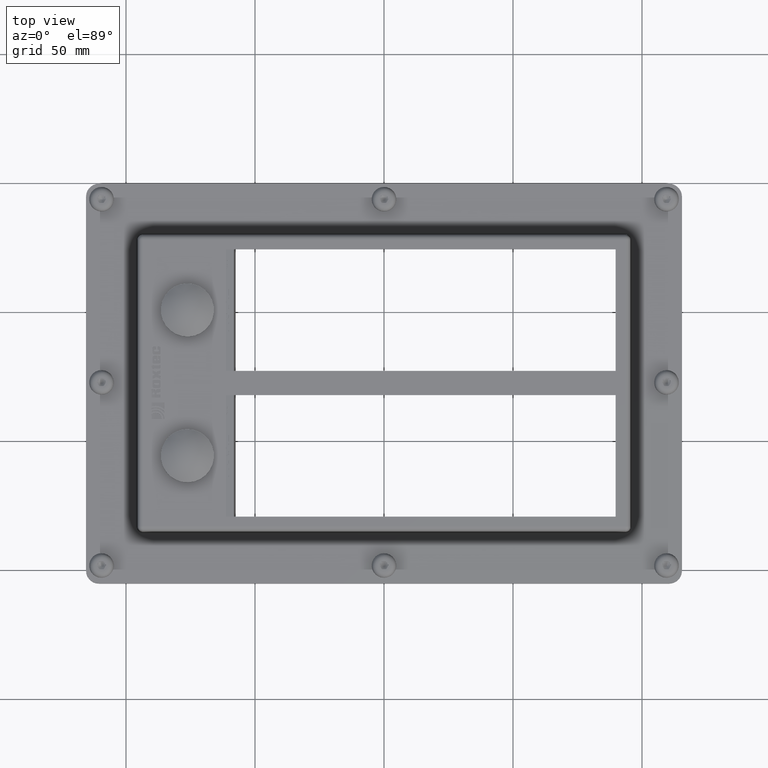
[diagram: clean part render]
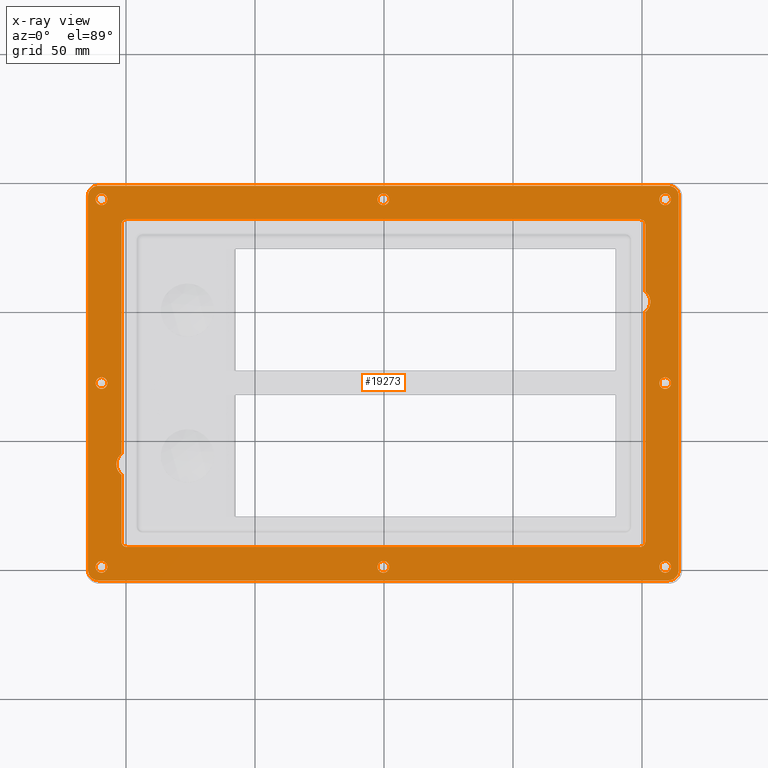
[diagram: x-ray — body ghosted, one internal face saturated and labeled with its STEP entity id]
A machine part, top view, then the same camera in x-ray: the body is ghosted and one INTERNAL B-rep face — a face not visible from any outside direction — is saturated and labeled: STEP entity #19273.
In plain terms, the highlighted planar face has unit normal (0, 0, -1).
Its self-contained STEP definition (entity closure, byte-faithful):
#18415=CARTESIAN_POINT('',(-101.75000000000028,-55.499999999999822,14.500000000000002));
#18416=VERTEX_POINT('',#18415);
#18423=CARTESIAN_POINT('',(-101.75000000000027,-63.499999999999815,14.500000000000002));
#18424=VERTEX_POINT('',#18423);
#18425=CARTESIAN_POINT('',(-98.750000000000284,-59.499999999999815,14.500000000000002));
#18426=DIRECTION('',(0.0,0.0,-1.0));
#18427=DIRECTION('',(-0.600000000000001,0.799999999999999,0.0));
#18428=AXIS2_PLACEMENT_3D('',#18425,#18426,#18427);
#18429=CIRCLE('',#18428,5.000000000000001);
#18430=EDGE_CURVE('',#18424,#18416,#18429,.T.);
#18457=CARTESIAN_POINT('',(101.24999999999972,-0.499999999999812,14.500000000000002));
#18458=VERTEX_POINT('',#18457);
#18465=CARTESIAN_POINT('',(101.24999999999972,7.50000000000016,14.500000000000002));
#18466=VERTEX_POINT('',#18465);
#18467=CARTESIAN_POINT('',(98.249999999999716,3.500000000000174,14.500000000000002));
#18468=DIRECTION('',(0.0,0.0,-1.0));
#18469=DIRECTION('',(-0.600000000000002,0.799999999999998,0.0));
#18470=AXIS2_PLACEMENT_3D('',#18467,#18468,#18469);
#18471=CIRCLE('',#18470,5.0);
#18472=EDGE_CURVE('',#18466,#18458,#18471,.T.);
#18489=CARTESIAN_POINT('',(-101.75000000000028,-89.499999999999815,14.500000000000002));
#18490=VERTEX_POINT('',#18489);
#18491=CARTESIAN_POINT('',(-101.75000000000027,-89.499999999999829,14.500000000000002));
#18492=DIRECTION('',(0.0,1.0,0.0));
#18493=VECTOR('',#18492,26.000000000000007);
#18494=LINE('',#18491,#18493);
#18495=EDGE_CURVE('',#18490,#18424,#18494,.T.);
#18528=CARTESIAN_POINT('',(-101.75000000000027,33.500000000000171,14.500000000000002));
#18529=VERTEX_POINT('',#18528);
#18536=CARTESIAN_POINT('',(-101.75000000000027,-55.499999999999822,14.500000000000002));
#18537=DIRECTION('',(0.0,1.0,0.0));
#18538=VECTOR('',#18537,89.0);
#18539=LINE('',#18536,#18538);
#18540=EDGE_CURVE('',#18416,#18529,#18539,.T.);
#18559=CARTESIAN_POINT('',(101.24999999999972,-89.499999999999773,14.500000000000002));
#18560=VERTEX_POINT('',#18559);
#18567=CARTESIAN_POINT('',(101.2499999999997,-0.499999999999808,14.500000000000002));
#18568=DIRECTION('',(0.0,-1.0,0.0));
#18569=VECTOR('',#18568,88.999999999999972);
#18570=LINE('',#18567,#18569);
#18571=EDGE_CURVE('',#18458,#18560,#18570,.T.);
#18811=CARTESIAN_POINT('',(111.24999999999974,-27.999999999999822,14.500000000000002));
#18812=VERTEX_POINT('',#18811);
#18813=CARTESIAN_POINT('',(108.99999999999974,-27.999999999999822,14.500000000000002));
#18814=DIRECTION('',(0.0,0.0,-1.0));
#18815=DIRECTION('',(1.0,0.0,0.0));
#18816=AXIS2_PLACEMENT_3D('',#18813,#18814,#18815);
#18817=CIRCLE('',#18816,2.25);
#18818=EDGE_CURVE('',#18812,#18812,#18817,.T.);
#18831=CARTESIAN_POINT('',(-107.25000000000026,-27.999999999999812,14.500000000000002));
#18832=VERTEX_POINT('',#18831);
#18833=CARTESIAN_POINT('',(-109.50000000000028,-27.999999999999812,14.500000000000002));
#18834=DIRECTION('',(0.0,0.0,-1.0));
#18835=DIRECTION('',(1.0,0.0,0.0));
#18836=AXIS2_PLACEMENT_3D('',#18833,#18834,#18835);
#18837=CIRCLE('',#18836,2.25);
#18838=EDGE_CURVE('',#18832,#18832,#18837,.T.);
#18851=CARTESIAN_POINT('',(1.999999999999744,43.250000000000185,14.500000000000002));
#18852=VERTEX_POINT('',#18851);
#18853=CARTESIAN_POINT('',(-0.250000000000252,43.250000000000185,14.500000000000002));
#18854=DIRECTION('',(0.0,0.0,-1.0));
#18855=DIRECTION('',(1.0,0.0,0.0));
#18856=AXIS2_PLACEMENT_3D('',#18853,#18854,#18855);
#18857=CIRCLE('',#18856,2.25);
#18858=EDGE_CURVE('',#18852,#18852,#18857,.T.);
#18871=CARTESIAN_POINT('',(1.999999999999691,-99.249999999999815,14.500000000000002));
#18872=VERTEX_POINT('',#18871);
#18873=CARTESIAN_POINT('',(-0.250000000000306,-99.249999999999815,14.500000000000002));
#18874=DIRECTION('',(0.0,0.0,-1.0));
#18875=DIRECTION('',(1.0,0.0,0.0));
#18876=AXIS2_PLACEMENT_3D('',#18873,#18874,#18875);
#18877=CIRCLE('',#18876,2.25);
#18878=EDGE_CURVE('',#18872,#18872,#18877,.T.);
#18891=CARTESIAN_POINT('',(-107.2500000000003,-99.249999999999815,14.500000000000002));
#18892=VERTEX_POINT('',#18891);
#18893=CARTESIAN_POINT('',(-109.5000000000003,-99.249999999999815,14.500000000000002));
#18894=DIRECTION('',(0.0,0.0,-1.0));
#18895=DIRECTION('',(1.0,0.0,0.0));
#18896=AXIS2_PLACEMENT_3D('',#18893,#18894,#18895);
#18897=CIRCLE('',#18896,2.25);
#18898=EDGE_CURVE('',#18892,#18892,#18897,.T.);
#18911=CARTESIAN_POINT('',(-107.25000000000024,43.250000000000206,14.500000000000002));
#18912=VERTEX_POINT('',#18911);
#18913=CARTESIAN_POINT('',(-109.50000000000024,43.250000000000206,14.500000000000002));
#18914=DIRECTION('',(0.0,0.0,-1.0));
#18915=DIRECTION('',(1.0,0.0,0.0));
#18916=AXIS2_PLACEMENT_3D('',#18913,#18914,#18915);
#18917=CIRCLE('',#18916,2.25);
#18918=EDGE_CURVE('',#18912,#18912,#18917,.T.);
#18931=CARTESIAN_POINT('',(111.24999999999972,-99.249999999999815,14.500000000000002));
#18932=VERTEX_POINT('',#18931);
#18933=CARTESIAN_POINT('',(108.9999999999997,-99.249999999999815,14.500000000000002));
#18934=DIRECTION('',(0.0,0.0,-1.0));
#18935=DIRECTION('',(1.0,0.0,0.0));
#18936=AXIS2_PLACEMENT_3D('',#18933,#18934,#18935);
#18937=CIRCLE('',#18936,2.25);
#18938=EDGE_CURVE('',#18932,#18932,#18937,.T.);
#18951=CARTESIAN_POINT('',(111.24999999999974,43.250000000000185,14.500000000000002));
#18952=VERTEX_POINT('',#18951);
#18953=CARTESIAN_POINT('',(108.99999999999974,43.250000000000185,14.500000000000002));
#18954=DIRECTION('',(0.0,0.0,-1.0));
#18955=DIRECTION('',(1.0,0.0,0.0));
#18956=AXIS2_PLACEMENT_3D('',#18953,#18954,#18955);
#18957=CIRCLE('',#18956,2.25);
#18958=EDGE_CURVE('',#18952,#18952,#18957,.T.);
#18968=CARTESIAN_POINT('',(-99.750000000000284,-91.499999999999801,14.500000000000002));
#18969=VERTEX_POINT('',#18968);
#18970=CARTESIAN_POINT('',(-99.750000000000284,-89.499999999999801,14.500000000000002));
#18971=DIRECTION('',(0.0,0.0,1.0));
#18972=DIRECTION('',(-0.707106781186547,-0.707106781186548,0.0));
#18973=AXIS2_PLACEMENT_3D('',#18970,#18971,#18972);
#18974=CIRCLE('',#18973,2.0);
#18975=EDGE_CURVE('',#18490,#18969,#18974,.T.);
#18994=CARTESIAN_POINT('',(99.249999999999716,-91.499999999999773,14.500000000000002));
#18995=VERTEX_POINT('',#18994);
#18996=CARTESIAN_POINT('',(99.24999999999973,-91.499999999999787,14.500000000000002));
#18997=DIRECTION('',(-1.0,0.0,0.0));
#18998=VECTOR('',#18997,199.0);
#18999=LINE('',#18996,#18998);
#19000=EDGE_CURVE('',#18995,#18969,#18999,.T.);
#19017=CARTESIAN_POINT('',(99.249999999999716,-89.499999999999773,14.500000000000002));
#19018=DIRECTION('',(0.0,0.0,1.0));
#19019=DIRECTION('',(0.70710678118654,-0.707106781186555,0.0));
#19020=AXIS2_PLACEMENT_3D('',#19017,#19018,#19019);
#19021=CIRCLE('',#19020,2.0);
#19022=EDGE_CURVE('',#18995,#18560,#19021,.T.);
#19036=CARTESIAN_POINT('',(101.24999999999972,33.500000000000171,14.500000000000002));
#19037=VERTEX_POINT('',#19036);
#19038=CARTESIAN_POINT('',(101.2499999999997,33.500000000000171,14.500000000000002));
#19039=DIRECTION('',(0.0,-1.0,0.0));
#19040=VECTOR('',#19039,26.0);
#19041=LINE('',#19038,#19040);
#19042=EDGE_CURVE('',#19037,#18466,#19041,.T.);
#19059=CARTESIAN_POINT('',(99.249999999999687,35.500000000000185,14.500000000000002));
#19060=VERTEX_POINT('',#19059);
#19061=CARTESIAN_POINT('',(99.249999999999687,33.500000000000171,14.500000000000002));
#19062=DIRECTION('',(0.0,0.0,1.0));
#19063=DIRECTION('',(0.707106781186554,0.707106781186541,0.0));
#19064=AXIS2_PLACEMENT_3D('',#19061,#19062,#19063);
#19065=CIRCLE('',#19064,2.0);
#19066=EDGE_CURVE('',#19037,#19060,#19065,.T.);
#19085=CARTESIAN_POINT('',(-99.750000000000284,35.500000000000185,14.500000000000002));
#19086=VERTEX_POINT('',#19085);
#19087=CARTESIAN_POINT('',(-99.750000000000284,35.500000000000178,14.500000000000002));
#19088=DIRECTION('',(1.0,0.0,0.0));
#19089=VECTOR('',#19088,198.99999999999997);
#19090=LINE('',#19087,#19089);
#19091=EDGE_CURVE('',#19086,#19060,#19090,.T.);
#19108=CARTESIAN_POINT('',(-99.750000000000284,33.500000000000171,14.500000000000002));
#19109=DIRECTION('',(0.0,0.0,1.0));
#19110=DIRECTION('',(-0.707106781186548,0.707106781186547,0.0));
#19111=AXIS2_PLACEMENT_3D('',#19108,#19109,#19110);
#19112=CIRCLE('',#19111,2.0);
#19113=EDGE_CURVE('',#19086,#18529,#19112,.T.);
#19127=CARTESIAN_POINT('',(-110.7500000000003,-104.49999999999982,14.500000000000002));
#19128=VERTEX_POINT('',#19127);
#19135=CARTESIAN_POINT('',(-114.7500000000003,-100.49999999999982,14.500000000000002));
#19136=VERTEX_POINT('',#19135);
#19137=CARTESIAN_POINT('',(-110.7500000000003,-100.49999999999982,14.500000000000002));
#19138=DIRECTION('',(0.0,0.0,-1.0));
#19139=DIRECTION('',(-0.707106781186547,-0.707106781186548,0.0));
#19140=AXIS2_PLACEMENT_3D('',#19137,#19138,#19139);
#19141=CIRCLE('',#19140,4.0);
#19142=EDGE_CURVE('',#19128,#19136,#19141,.T.);
#19159=CARTESIAN_POINT('',(-114.75000000000026,44.500000000000206,14.500000000000002));
#19160=VERTEX_POINT('',#19159);
#19161=CARTESIAN_POINT('',(-114.75000000000026,44.500000000000213,14.500000000000002));
#19162=DIRECTION('',(0.0,-1.0,0.0));
#19163=VECTOR('',#19162,145.00000000000003);
#19164=LINE('',#19161,#19163);
#19165=EDGE_CURVE('',#19160,#19136,#19164,.T.);
#19177=CARTESIAN_POINT('',(-0.250000000000288,-27.999999999999794,14.500000000000002));
#19178=DIRECTION('',(0.0,0.0,-1.0));
#19179=DIRECTION('',(0.0,1.0,0.0));
#19180=AXIS2_PLACEMENT_3D('',#19177,#19178,#19179);
#19181=PLANE('',#19180);
#19182=ORIENTED_EDGE('',*,*,#19142,.F.);
#19183=CARTESIAN_POINT('',(110.24999999999974,-104.49999999999982,14.500000000000002));
#19184=VERTEX_POINT('',#19183);
#19185=CARTESIAN_POINT('',(-110.7500000000003,-104.49999999999982,14.500000000000002));
#19186=DIRECTION('',(1.0,0.0,0.0));
#19187=VECTOR('',#19186,221.00000000000003);
#19188=LINE('',#19185,#19187);
#19189=EDGE_CURVE('',#19128,#19184,#19188,.T.);
#19190=ORIENTED_EDGE('',*,*,#19189,.T.);
#19191=CARTESIAN_POINT('',(114.24999999999972,-100.49999999999982,14.500000000000002));
#19192=VERTEX_POINT('',#19191);
#19193=CARTESIAN_POINT('',(110.24999999999974,-100.49999999999982,14.500000000000002));
#19194=DIRECTION('',(0.0,0.0,-1.0));
#19195=DIRECTION('',(0.707106781186546,-0.707106781186549,0.0));
#19196=AXIS2_PLACEMENT_3D('',#19193,#19194,#19195);
#19197=CIRCLE('',#19196,4.0);
#19198=EDGE_CURVE('',#19192,#19184,#19197,.T.);
#19199=ORIENTED_EDGE('',*,*,#19198,.F.);
#19200=CARTESIAN_POINT('',(114.24999999999972,44.500000000000185,14.500000000000002));
#19201=VERTEX_POINT('',#19200);
#19202=CARTESIAN_POINT('',(114.24999999999972,-100.49999999999982,14.500000000000002));
#19203=DIRECTION('',(0.0,1.0,0.0));
#19204=VECTOR('',#19203,145.0);
#19205=LINE('',#19202,#19204);
#19206=EDGE_CURVE('',#19192,#19201,#19205,.T.);
#19207=ORIENTED_EDGE('',*,*,#19206,.T.);
#19208=CARTESIAN_POINT('',(110.24999999999974,48.500000000000192,14.500000000000002));
#19209=VERTEX_POINT('',#19208);
#19210=CARTESIAN_POINT('',(110.24999999999974,44.500000000000185,14.500000000000002));
#19211=DIRECTION('',(0.0,0.0,-1.0));
#19212=DIRECTION('',(0.707106781186544,0.707106781186551,0.0));
#19213=AXIS2_PLACEMENT_3D('',#19210,#19211,#19212);
#19214=CIRCLE('',#19213,3.999999999999999);
#19215=EDGE_CURVE('',#19209,#19201,#19214,.T.);
#19216=ORIENTED_EDGE('',*,*,#19215,.F.);
#19217=CARTESIAN_POINT('',(-110.75000000000026,48.500000000000213,14.500000000000002));
#19218=VERTEX_POINT('',#19217);
#19219=CARTESIAN_POINT('',(110.24999999999973,48.500000000000192,14.500000000000002));
#19220=DIRECTION('',(-1.0,0.0,0.0));
#19221=VECTOR('',#19220,221.0);
#19222=LINE('',#19219,#19221);
#19223=EDGE_CURVE('',#19209,#19218,#19222,.T.);
#19224=ORIENTED_EDGE('',*,*,#19223,.T.);
#19225=CARTESIAN_POINT('',(-110.75000000000026,44.500000000000206,14.500000000000002));
#19226=DIRECTION('',(0.0,0.0,-1.0));
#19227=DIRECTION('',(-0.707106781186549,0.707106781186546,0.0));
#19228=AXIS2_PLACEMENT_3D('',#19225,#19226,#19227);
#19229=CIRCLE('',#19228,4.0);
#19230=EDGE_CURVE('',#19160,#19218,#19229,.T.);
#19231=ORIENTED_EDGE('',*,*,#19230,.F.);
#19232=ORIENTED_EDGE('',*,*,#19165,.T.);
#19233=EDGE_LOOP('',(#19182,#19190,#19199,#19207,#19216,#19224,#19231,#19232));
#19234=FACE_OUTER_BOUND('',#19233,.T.);
#19235=ORIENTED_EDGE('',*,*,#18430,.T.);
#19236=ORIENTED_EDGE('',*,*,#18540,.T.);
#19237=ORIENTED_EDGE('',*,*,#19113,.F.);
#19238=ORIENTED_EDGE('',*,*,#19091,.T.);
#19239=ORIENTED_EDGE('',*,*,#19066,.F.);
#19240=ORIENTED_EDGE('',*,*,#19042,.T.);
#19241=ORIENTED_EDGE('',*,*,#18472,.T.);
#19242=ORIENTED_EDGE('',*,*,#18571,.T.);
#19243=ORIENTED_EDGE('',*,*,#19022,.F.);
#19244=ORIENTED_EDGE('',*,*,#19000,.T.);
#19245=ORIENTED_EDGE('',*,*,#18975,.F.);
#19246=ORIENTED_EDGE('',*,*,#18495,.T.);
#19247=EDGE_LOOP('',(#19235,#19236,#19237,#19238,#19239,#19240,#19241,#19242,#19243,#19244,#19245,#19246));
#19248=FACE_BOUND('',#19247,.T.);
#19249=ORIENTED_EDGE('',*,*,#18818,.T.);
#19250=EDGE_LOOP('',(#19249));
#19251=FACE_BOUND('',#19250,.T.);
#19252=ORIENTED_EDGE('',*,*,#18838,.T.);
#19253=EDGE_LOOP('',(#19252));
#19254=FACE_BOUND('',#19253,.T.);
#19255=ORIENTED_EDGE('',*,*,#18858,.T.);
#19256=EDGE_LOOP('',(#19255));
#19257=FACE_BOUND('',#19256,.T.);
#19258=ORIENTED_EDGE('',*,*,#18878,.T.);
#19259=EDGE_LOOP('',(#19258));
#19260=FACE_BOUND('',#19259,.T.);
#19261=ORIENTED_EDGE('',*,*,#18898,.T.);
#19262=EDGE_LOOP('',(#19261));
#19263=FACE_BOUND('',#19262,.T.);
#19264=ORIENTED_EDGE('',*,*,#18918,.T.);
#19265=EDGE_LOOP('',(#19264));
#19266=FACE_BOUND('',#19265,.T.);
#19267=ORIENTED_EDGE('',*,*,#18938,.T.);
#19268=EDGE_LOOP('',(#19267));
#19269=FACE_BOUND('',#19268,.T.);
#19270=ORIENTED_EDGE('',*,*,#18958,.T.);
#19271=EDGE_LOOP('',(#19270));
#19272=FACE_BOUND('',#19271,.T.);
#19273=ADVANCED_FACE('',(#19234,#19248,#19251,#19254,#19257,#19260,#19263,#19266,#19269,#19272),#19181,.F.);